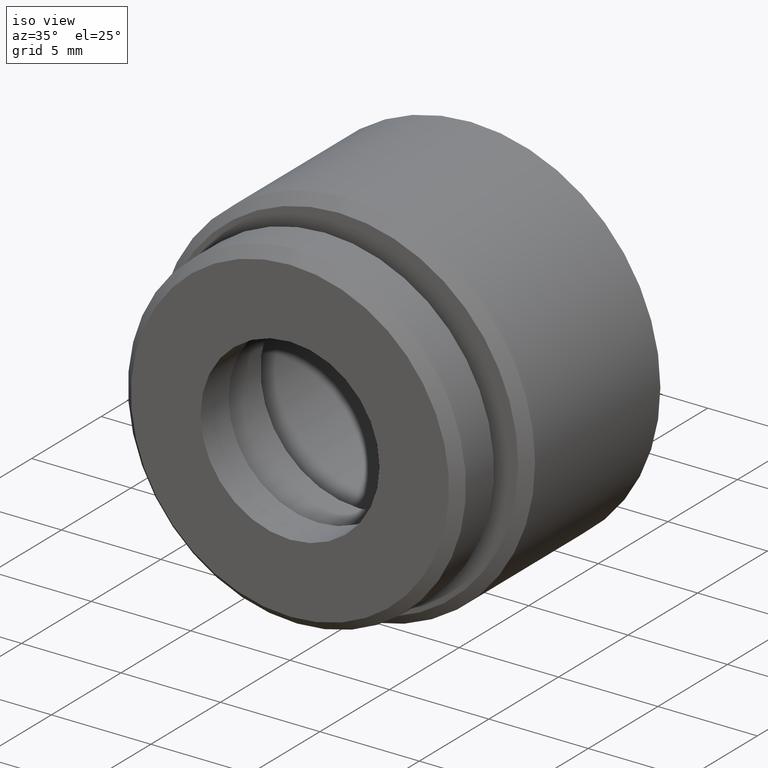
[diagram: clean part render]
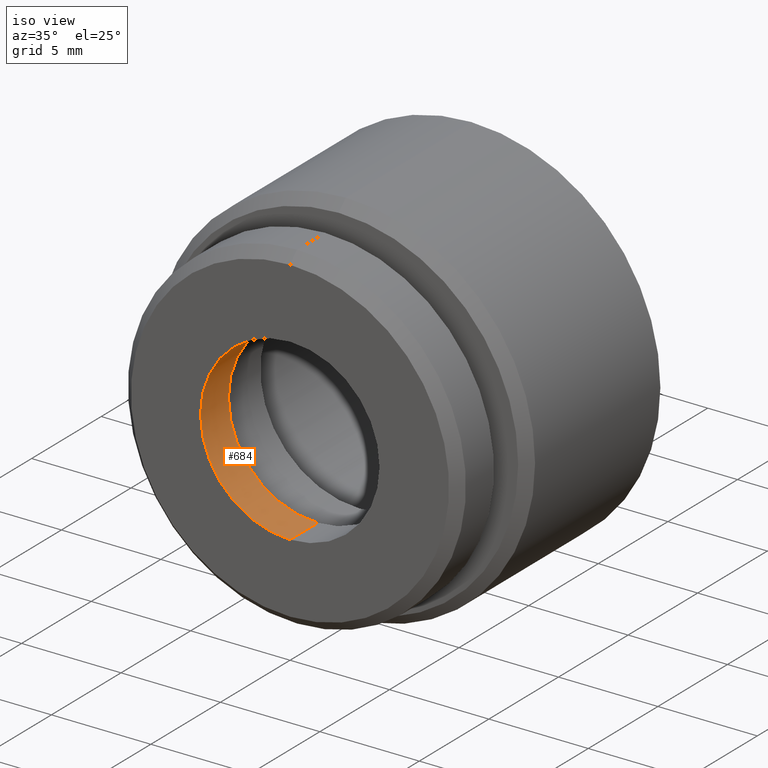
[diagram: same view with one face highlighted and labeled with its STEP entity id]
A machine part, iso view. The second image highlights one B-rep face of the part: STEP entity #684.
In plain terms, the highlighted cylindrical surface (partial cylindrical patch) has radius 4.5 mm, axis along (-0, -1, -0).
Its self-contained STEP definition (entity closure, byte-faithful):
#14 = AXIS2_PLACEMENT_3D ( 'NONE', #145, #188, #191 ) ;
#19 = CARTESIAN_POINT ( 'NONE',  ( 5.510910596163088600E-016, 2.000000000000000000, 4.500000000000000000 ) ) ;
#29 = DIRECTION ( 'NONE',  ( -0.0000000000000000000, -1.000000000000000000, -0.0000000000000000000 ) ) ;
#34 = ORIENTED_EDGE ( 'NONE', *, *, #237, .F. ) ;
#50 = DIRECTION ( 'NONE',  ( -0.0000000000000000000, -1.000000000000000000, -0.0000000000000000000 ) ) ;
#57 = CIRCLE ( 'NONE', #77, 4.500000000000000000 ) ;
#77 = AXIS2_PLACEMENT_3D ( 'NONE', #252, #29, #594 ) ;
#113 = ORIENTED_EDGE ( 'NONE', *, *, #332, .T. ) ;
#120 = CYLINDRICAL_SURFACE ( 'NONE', #620, 4.500000000000000000 ) ;
#145 = CARTESIAN_POINT ( 'NONE',  ( 0.0000000000000000000, 2.000000000000000000, 0.0000000000000000000 ) ) ;
#188 = DIRECTION ( 'NONE',  ( -0.0000000000000000000, -1.000000000000000000, -0.0000000000000000000 ) ) ;
#191 = DIRECTION ( 'NONE',  ( 0.0000000000000000000, 0.0000000000000000000, -1.000000000000000000 ) ) ;
#195 = DIRECTION ( 'NONE',  ( -0.0000000000000000000, -1.000000000000000000, -0.0000000000000000000 ) ) ;
#197 = CARTESIAN_POINT ( 'NONE',  ( 0.0000000000000000000, 0.0000000000000000000, 0.0000000000000000000 ) ) ;
#216 = LINE ( 'NONE', #772, #421 ) ;
#237 = EDGE_CURVE ( 'NONE', #321, #645, #767, .T. ) ;
#252 = CARTESIAN_POINT ( 'NONE',  ( 0.0000000000000000000, 0.0000000000000000000, 0.0000000000000000000 ) ) ;
#303 = VERTEX_POINT ( 'NONE', #830 ) ;
#321 = VERTEX_POINT ( 'NONE', #19 ) ;
#332 = EDGE_CURVE ( 'NONE', #303, #379, #57, .T. ) ;
#376 = EDGE_CURVE ( 'NONE', #645, #379, #216, .T. ) ;
#379 = VERTEX_POINT ( 'NONE', #676 ) ;
#421 = VECTOR ( 'NONE', #656, 1000.000000000000000 ) ;
#474 = CARTESIAN_POINT ( 'NONE',  ( 0.0000000000000000000, 2.000000000000000000, -4.500000000000000000 ) ) ;
#495 = ORIENTED_EDGE ( 'NONE', *, *, #376, .F. ) ;
#581 = LINE ( 'NONE', #608, #722 ) ;
#590 = FACE_OUTER_BOUND ( 'NONE', #863, .T. ) ;
#594 = DIRECTION ( 'NONE',  ( 0.0000000000000000000, 0.0000000000000000000, -1.000000000000000000 ) ) ;
#608 = CARTESIAN_POINT ( 'NONE',  ( 5.510910596163088600E-016, 0.0000000000000000000, 4.500000000000000000 ) ) ;
#612 = DIRECTION ( 'NONE',  ( 0.0000000000000000000, 0.0000000000000000000, -1.000000000000000000 ) ) ;
#620 = AXIS2_PLACEMENT_3D ( 'NONE', #197, #195, #612 ) ;
#645 = VERTEX_POINT ( 'NONE', #474 ) ;
#656 = DIRECTION ( 'NONE',  ( -0.0000000000000000000, -1.000000000000000000, -0.0000000000000000000 ) ) ;
#676 = CARTESIAN_POINT ( 'NONE',  ( 0.0000000000000000000, 0.0000000000000000000, -4.500000000000000000 ) ) ;
#684 = ADVANCED_FACE ( 'NONE', ( #590 ), #120, .F. ) ;
#704 = EDGE_CURVE ( 'NONE', #321, #303, #581, .T. ) ;
#722 = VECTOR ( 'NONE', #50, 1000.000000000000000 ) ;
#767 = CIRCLE ( 'NONE', #14, 4.500000000000000000 ) ;
#772 = CARTESIAN_POINT ( 'NONE',  ( 0.0000000000000000000, 0.0000000000000000000, -4.500000000000000000 ) ) ;
#823 = ORIENTED_EDGE ( 'NONE', *, *, #704, .T. ) ;
#830 = CARTESIAN_POINT ( 'NONE',  ( 5.510910596163088600E-016, 0.0000000000000000000, 4.500000000000000000 ) ) ;
#863 = EDGE_LOOP ( 'NONE', ( #34, #823, #113, #495 ) ) ;